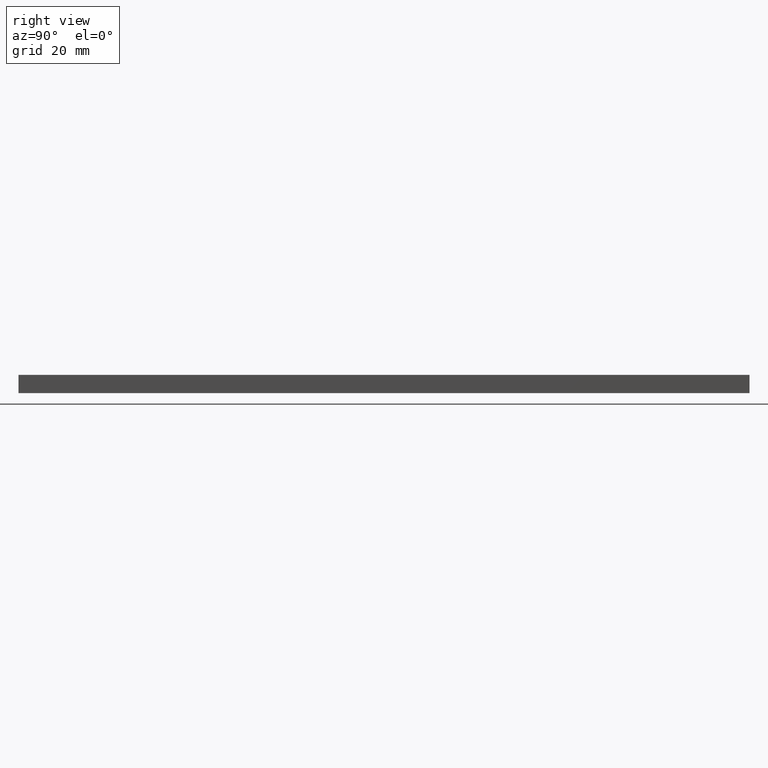
[diagram: clean part render]
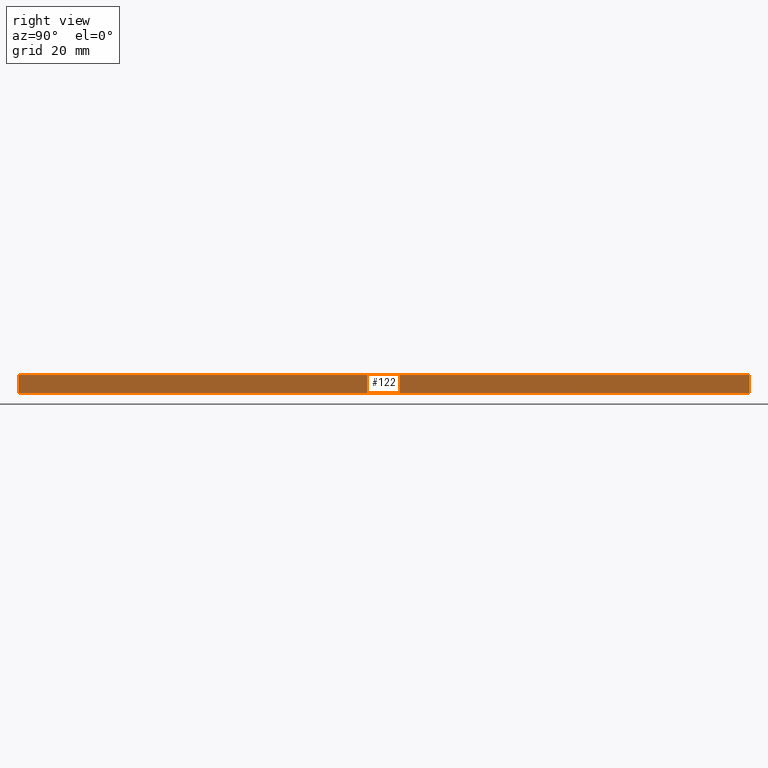
[diagram: same view with one face highlighted and labeled with its STEP entity id]
A machine part, right view. The second image highlights one B-rep face of the part: STEP entity #122.
In plain terms, the highlighted planar face has unit normal (-1, 0, 0).
Its self-contained STEP definition (entity closure, byte-faithful):
#8 = VECTOR ( 'NONE', #167, 1000.000000000000000 ) ;
#12 = ORIENTED_EDGE ( 'NONE', *, *, #87, .F. ) ;
#18 = CARTESIAN_POINT ( 'NONE',  ( 5.000000000000000000, 1000.000000000000000, 0.0000000000000000000 ) ) ;
#23 = CARTESIAN_POINT ( 'NONE',  ( 5.000000000000000000, 0.0000000000000000000, 0.0000000000000000000 ) ) ;
#35 = CARTESIAN_POINT ( 'NONE',  ( 5.000000000000000000, 0.0000000000000000000, 5.000000000000000000 ) ) ;
#43 = LINE ( 'NONE', #18, #8 ) ;
#46 = LINE ( 'NONE', #35, #154 ) ;
#52 = DIRECTION ( 'NONE',  ( 0.0000000000000000000, 0.0000000000000000000, -1.000000000000000000 ) ) ;
#55 = PLANE ( 'NONE',  #188 ) ;
#56 = EDGE_CURVE ( 'NONE', #159, #186, #84, .T. ) ;
#58 = ORIENTED_EDGE ( 'NONE', *, *, #177, .F. ) ;
#59 = DIRECTION ( 'NONE',  ( 0.0000000000000000000, 0.0000000000000000000, -1.000000000000000000 ) ) ;
#63 = CARTESIAN_POINT ( 'NONE',  ( 5.000000000000000000, 1000.000000000000000, 5.000000000000000000 ) ) ;
#71 = VECTOR ( 'NONE', #76, 1000.000000000000000 ) ;
#74 = CARTESIAN_POINT ( 'NONE',  ( 5.000000000000000000, 200.0000000000000000, 5.000000000000000000 ) ) ;
#76 = DIRECTION ( 'NONE',  ( 0.0000000000000000000, -1.000000000000000000, 0.0000000000000000000 ) ) ;
#84 = LINE ( 'NONE', #63, #71 ) ;
#87 = EDGE_CURVE ( 'NONE', #124, #108, #43, .T. ) ;
#99 = VECTOR ( 'NONE', #59, 1000.000000000000000 ) ;
#100 = EDGE_CURVE ( 'NONE', #186, #108, #46, .T. ) ;
#108 = VERTEX_POINT ( 'NONE', #23 ) ;
#112 = EDGE_LOOP ( 'NONE', ( #231, #12, #58, #146 ) ) ;
#122 = ADVANCED_FACE ( 'NONE', ( #213 ), #55, .F. ) ;
#124 = VERTEX_POINT ( 'NONE', #223 ) ;
#136 = LINE ( 'NONE', #233, #99 ) ;
#146 = ORIENTED_EDGE ( 'NONE', *, *, #56, .T. ) ;
#153 = DIRECTION ( 'NONE',  ( 0.0000000000000000000, 0.0000000000000000000, 1.000000000000000000 ) ) ;
#154 = VECTOR ( 'NONE', #52, 1000.000000000000000 ) ;
#159 = VERTEX_POINT ( 'NONE', #74 ) ;
#164 = CARTESIAN_POINT ( 'NONE',  ( 5.000000000000000000, 0.0000000000000000000, 5.000000000000000000 ) ) ;
#167 = DIRECTION ( 'NONE',  ( 0.0000000000000000000, -1.000000000000000000, 0.0000000000000000000 ) ) ;
#170 = CARTESIAN_POINT ( 'NONE',  ( 5.000000000000000000, 1000.000000000000000, 5.000000000000000000 ) ) ;
#177 = EDGE_CURVE ( 'NONE', #159, #124, #136, .T. ) ;
#186 = VERTEX_POINT ( 'NONE', #164 ) ;
#188 = AXIS2_PLACEMENT_3D ( 'NONE', #170, #206, #153 ) ;
#206 = DIRECTION ( 'NONE',  ( -1.000000000000000000, 0.0000000000000000000, 0.0000000000000000000 ) ) ;
#213 = FACE_OUTER_BOUND ( 'NONE', #112, .T. ) ;
#223 = CARTESIAN_POINT ( 'NONE',  ( 5.000000000000000000, 200.0000000000000000, 0.0000000000000000000 ) ) ;
#231 = ORIENTED_EDGE ( 'NONE', *, *, #100, .T. ) ;
#233 = CARTESIAN_POINT ( 'NONE',  ( 5.000000000000000000, 200.0000000000000000, 5.000000000000000000 ) ) ;